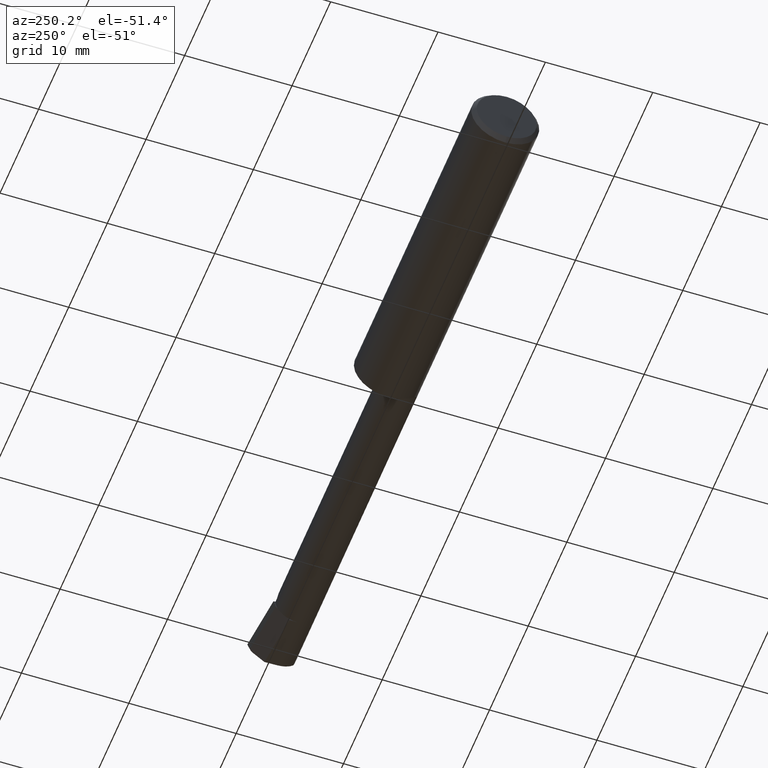
[diagram: clean part render]
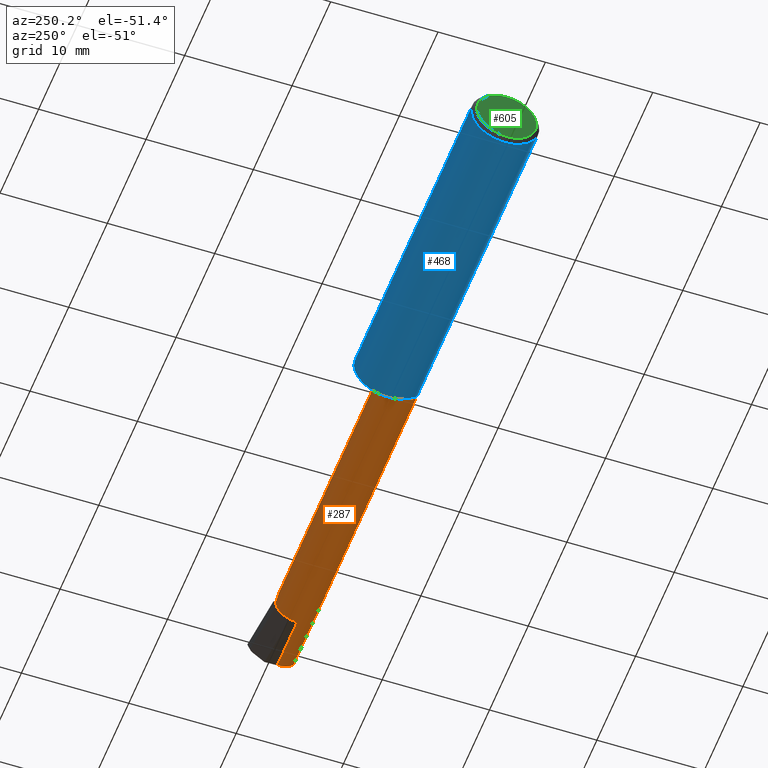
[diagram: same view with three faces highlighted in distinct colors, each labeled with its STEP entity id]
A machine part, auxiliary view with three faces highlighted in distinct colors.
Their STEP definitions:

[orange] entity #287 — the highlighted cylindrical surface (edge-blend (fillet) strip) has radius 2.0104 mm, axis along (-1, 0, -0).
#6 = CARTESIAN_POINT ( 'NONE',  ( 1.760000000000000009, -0.1133222222222223657, -0.05239843939104725512 ) ) ;
#13 = CARTESIAN_POINT ( 'NONE',  ( 2.270000000000000018, 0.02514999999999986691, 2.816687638038912303E-17 ) ) ;
#23 = CARTESIAN_POINT ( 'NONE',  ( 2.152626807264918618, -0.05593098589442790231, 0.1173731927350792209 ) ) ;
#32 = EDGE_CURVE ( 'NONE', #280, #154, #515, .T. ) ;
#34 = ORIENTED_EDGE ( 'NONE', *, *, #200, .T. ) ;
#39 = LINE ( 'NONE', #400, #157 ) ;
#43 = CYLINDRICAL_SURFACE ( 'NONE', #606, 0.07914999999999991487 ) ;
#58 = ORIENTED_EDGE ( 'NONE', *, *, #292, .T. ) ;
#68 = EDGE_CURVE ( 'NONE', #506, #158, #479, .T. ) ;
#70 = LINE ( 'NONE', #6, #493 ) ;
#76 = CARTESIAN_POINT ( 'NONE',  ( 2.486868858499483803, -0.07705019563525719595, -0.07914999999999994262 ) ) ;
#78 = VERTEX_POINT ( 'NONE', #522 ) ;
#88 = LINE ( 'NONE', #501, #197 ) ;
#90 = DIRECTION ( 'NONE',  ( 0.0000000000000000000, -1.000000000000000000, 0.0000000000000000000 ) ) ;
#96 = VERTEX_POINT ( 'NONE', #366 ) ;
#98 = AXIS2_PLACEMENT_3D ( 'NONE', #147, #472, #90 ) ;
#122 = ORIENTED_EDGE ( 'NONE', *, *, #261, .T. ) ;
#147 = CARTESIAN_POINT ( 'NONE',  ( 2.285000000000000142, -0.05399999999999999939, 0.0000000000000000000 ) ) ;
#149 = AXIS2_PLACEMENT_3D ( 'NONE', #574, #208, #525 ) ;
#154 = VERTEX_POINT ( 'NONE', #413 ) ;
#157 = VECTOR ( 'NONE', #454, 39.37007874015748143 ) ;
#158 = VERTEX_POINT ( 'NONE', #415 ) ;
#163 = CARTESIAN_POINT ( 'NONE',  ( 2.285000000000000142, -0.05399999999999999939, 0.0000000000000000000 ) ) ;
#176 = CARTESIAN_POINT ( 'NONE',  ( 2.489204846642126157, -0.1133222222222223657, -0.05239843939104725512 ) ) ;
#181 = DIRECTION ( 'NONE',  ( 0.0000000000000000000, -1.000000000000000000, 0.0000000000000000000 ) ) ;
#183 = DIRECTION ( 'NONE',  ( 1.000000000000000000, -3.414809992080329023E-18, 0.0000000000000000000 ) ) ;
#187 = CARTESIAN_POINT ( 'NONE',  ( 2.487482489302630828, -0.09806266089631200666, -0.06967435635555044304 ) ) ;
#188 = EDGE_CURVE ( 'NONE', #382, #78, #434, .T. ) ;
#197 = VECTOR ( 'NONE', #183, 39.37007874015748143 ) ;
#199 = CIRCLE ( 'NONE', #249, 0.07914999999999995650 ) ;
#200 = EDGE_CURVE ( 'NONE', #280, #96, #88, .T. ) ;
#208 = DIRECTION ( 'NONE',  ( -1.000000000000000000, 3.414809992080329023E-18, -0.0000000000000000000 ) ) ;
#213 = EDGE_CURVE ( 'NONE', #78, #227, #39, .T. ) ;
#217 = ORIENTED_EDGE ( 'NONE', *, *, #213, .F. ) ;
#219 = DIRECTION ( 'NONE',  ( 0.0000000000000000000, -1.000000000000000000, 0.0000000000000000000 ) ) ;
#227 = VERTEX_POINT ( 'NONE', #481 ) ;
#230 = DIRECTION ( 'NONE',  ( -1.000000000000000000, 3.414809992080329023E-18, -0.0000000000000000000 ) ) ;
#236 = EDGE_CURVE ( 'NONE', #336, #270, #438, .T. ) ;
#239 = DIRECTION ( 'NONE',  ( -1.000000000000000000, 3.414809992080329023E-18, -0.0000000000000000000 ) ) ;
#249 = AXIS2_PLACEMENT_3D ( 'NONE', #601, #239, #181 ) ;
#261 = EDGE_CURVE ( 'NONE', #270, #158, #658, .T. ) ;
#270 = VERTEX_POINT ( 'NONE', #533 ) ;
#273 = CARTESIAN_POINT ( 'NONE',  ( 2.702822108735687789E-19, 0.02514999999999990160, 9.802154982235641300E-16 ) ) ;
#280 = VERTEX_POINT ( 'NONE', #624 ) ;
#287 = ADVANCED_FACE ( 'NONE', ( #315 ), #43, .T. ) ;
#292 = EDGE_CURVE ( 'NONE', #506, #227, #199, .T. ) ;
#294 = CARTESIAN_POINT ( 'NONE',  ( 2.183308174668249446, 0.02515000000000005426, 0.08669182533174922545 ) ) ;
#311 = EDGE_LOOP ( 'NONE', ( #437, #403, #591, #34, #524, #596, #122, #375, #58, #217 ) ) ;
#315 = FACE_OUTER_BOUND ( 'NONE', #311, .T. ) ;
#328 = DIRECTION ( 'NONE',  ( -3.414809992080329023E-18, -1.000000000000000000, 0.0000000000000000000 ) ) ;
#335 = EDGE_CURVE ( 'NONE', #96, #336, #581, .T. ) ;
#336 = VERTEX_POINT ( 'NONE', #13 ) ;
#366 = CARTESIAN_POINT ( 'NONE',  ( 2.217601560608951861, -0.1133222222222223519, 0.05239843939104727594 ) ) ;
#375 = ORIENTED_EDGE ( 'NONE', *, *, #68, .F. ) ;
#382 = VERTEX_POINT ( 'NONE', #176 ) ;
#400 = CARTESIAN_POINT ( 'NONE',  ( 2.500000000000000000, -0.05399999999999999939, -0.07914999999999994262 ) ) ;
#403 = ORIENTED_EDGE ( 'NONE', *, *, #423, .T. ) ;
#404 = CARTESIAN_POINT ( 'NONE',  ( 2.487472449114545014, -0.05399999999999999939, -0.07914999999999994262 ) ) ;
#413 = CARTESIAN_POINT ( 'NONE',  ( 1.235000000000000098, -0.1133222222222222825, -0.05239843939104724818 ) ) ;
#415 = CARTESIAN_POINT ( 'NONE',  ( 2.285000000000000142, 0.01818157456899020114, -0.03247372465149776788 ) ) ;
#423 = EDGE_CURVE ( 'NONE', #382, #154, #70, .T. ) ;
#432 = VECTOR ( 'NONE', #436, 39.37007874015748143 ) ;
#434 =( BOUNDED_CURVE ( )  B_SPLINE_CURVE ( 3, ( #505, #187, #76, #404 ),
 .UNSPECIFIED., .F., .T. ) 
 B_SPLINE_CURVE_WITH_KNOTS ( ( 4, 4 ),
 ( 5.645941690095278354, 6.493234751460115639 ),
 .UNSPECIFIED. ) 
 CURVE ( )  GEOMETRIC_REPRESENTATION_ITEM ( )  RATIONAL_B_SPLINE_CURVE ( ( 1.000000000000000000, 0.9410639745696119940, 0.9410639745696119940, 1.000000000000000000 ) ) 
 REPRESENTATION_ITEM ( '' )  );
#436 = DIRECTION ( 'NONE',  ( 1.000000000000000000, -3.414809992080329023E-18, 0.0000000000000000000 ) ) ;
#437 = ORIENTED_EDGE ( 'NONE', *, *, #188, .F. ) ;
#438 = LINE ( 'NONE', #273, #432 ) ;
#451 = DIRECTION ( 'NONE',  ( -1.000000000000000000, 3.414809992080329023E-18, -0.0000000000000000000 ) ) ;
#452 = CARTESIAN_POINT ( 'NONE',  ( 2.217601560608951861, -0.1133222222222223519, 0.05239843939104727594 ) ) ;
#454 = DIRECTION ( 'NONE',  ( -1.000000000000000000, 5.691349986800549142E-18, -0.0000000000000000000 ) ) ;
#472 = DIRECTION ( 'NONE',  ( 1.000000000000000000, -3.414809992080329023E-18, 0.0000000000000000000 ) ) ;
#479 = CIRCLE ( 'NONE', #98, 0.07914999999999992875 ) ;
#481 = CARTESIAN_POINT ( 'NONE',  ( 2.285000000000000142, -0.05399999999999999939, -0.07914999999999994262 ) ) ;
#493 = VECTOR ( 'NONE', #230, 39.37007874015748143 ) ;
#501 = CARTESIAN_POINT ( 'NONE',  ( 1.760000000000000009, -0.1133222222222223657, 0.05239843939104725512 ) ) ;
#505 = CARTESIAN_POINT ( 'NONE',  ( 2.489204846642126157, -0.1133222222222223657, -0.05239843939104725512 ) ) ;
#506 = VERTEX_POINT ( 'NONE', #580 ) ;
#515 = CIRCLE ( 'NONE', #149, 0.07914999999999984548 ) ;
#522 = CARTESIAN_POINT ( 'NONE',  ( 2.487472449114545014, -0.05399999999999999939, -0.07914999999999994262 ) ) ;
#524 = ORIENTED_EDGE ( 'NONE', *, *, #335, .T. ) ;
#525 = DIRECTION ( 'NONE',  ( 0.0000000000000000000, -1.000000000000000000, 0.0000000000000000000 ) ) ;
#531 = DIRECTION ( 'NONE',  ( -1.000000000000000000, 3.414809992080329023E-18, -0.0000000000000000000 ) ) ;
#533 = CARTESIAN_POINT ( 'NONE',  ( 2.285000000000000142, 0.02514999999999996058, 9.802154982235649188E-16 ) ) ;
#574 = CARTESIAN_POINT ( 'NONE',  ( 1.235000000000000098, -0.05399999999999999245, 0.0000000000000000000 ) ) ;
#580 = CARTESIAN_POINT ( 'NONE',  ( 2.285000000000000142, -0.01935479767416492525, -0.07116482597324283454 ) ) ;
#581 =( BOUNDED_CURVE ( )  B_SPLINE_CURVE ( 3, ( #452, #23, #294, #641 ),
 .UNSPECIFIED., .F., .T. ) 
 B_SPLINE_CURVE_WITH_KNOTS ( ( 4, 4 ),
 ( 5.435892245814749835, 7.853981633974484566 ),
 .UNSPECIFIED. ) 
 CURVE ( )  GEOMETRIC_REPRESENTATION_ITEM ( )  RATIONAL_B_SPLINE_CURVE ( ( 1.000000000000000000, 0.5692753596694912765, 0.5692753596694912765, 1.000000000000000000 ) ) 
 REPRESENTATION_ITEM ( '' )  );
#591 = ORIENTED_EDGE ( 'NONE', *, *, #32, .F. ) ;
#596 = ORIENTED_EDGE ( 'NONE', *, *, #236, .T. ) ;
#601 = CARTESIAN_POINT ( 'NONE',  ( 2.285000000000000142, -0.05399999999999999939, 0.0000000000000000000 ) ) ;
#606 = AXIS2_PLACEMENT_3D ( 'NONE', #623, #451, #328 ) ;
#623 = CARTESIAN_POINT ( 'NONE',  ( 0.0000000000000000000, -0.05399999999999999245, 0.0000000000000000000 ) ) ;
#624 = CARTESIAN_POINT ( 'NONE',  ( 1.235000000000000098, -0.1133222222222222547, 0.05239843939104728288 ) ) ;
#641 = CARTESIAN_POINT ( 'NONE',  ( 2.270000000000000018, 0.02514999999999986691, 2.816687638038912303E-17 ) ) ;
#658 = CIRCLE ( 'NONE', #660, 0.07914999999999995650 ) ;
#660 = AXIS2_PLACEMENT_3D ( 'NONE', #163, #531, #219 ) ;

[blue] entity #468 — the highlighted cylindrical surface (edge-blend (fillet) strip) has radius 3.1712 mm, axis along (-1, -0, -0).
#6 = CARTESIAN_POINT ( 'NONE',  ( 1.760000000000000009, -0.1133222222222223657, -0.05239843939104725512 ) ) ;
#11 = VERTEX_POINT ( 'NONE', #477 ) ;
#21 = CARTESIAN_POINT ( 'NONE',  ( 0.01499999999999999424, 0.04895916665957457392, 0.1148500000000000076 ) ) ;
#24 = AXIS2_PLACEMENT_3D ( 'NONE', #625, #223, #585 ) ;
#25 = CARTESIAN_POINT ( 'NONE',  ( 1.233393805215129646, -0.1133222222232597165, 0.05239843938880395929 ) ) ;
#26 = CARTESIAN_POINT ( 'NONE',  ( 1.209999999999997300, -0.07604212793636108692, 0.09921827904968770484 ) ) ;
#33 = CARTESIAN_POINT ( 'NONE',  ( 0.01499999999999999424, 0.0000000000000000000, -0.1248500000000000026 ) ) ;
#45 = ORIENTED_EDGE ( 'NONE', *, *, #200, .F. ) ;
#49 = DIRECTION ( 'NONE',  ( -1.000000000000000000, -0.0000000000000000000, -0.0000000000000000000 ) ) ;
#53 = CARTESIAN_POINT ( 'NONE',  ( 1.218837986083220359, -0.1048226606062679089, -0.06804511026469604873 ) ) ;
#61 = DIRECTION ( 'NONE',  ( -1.000000000000000000, -0.0000000000000000000, -0.0000000000000000000 ) ) ;
#66 = DIRECTION ( 'NONE',  ( -1.000000000000000000, -0.0000000000000000000, -0.0000000000000000000 ) ) ;
#70 = LINE ( 'NONE', #6, #493 ) ;
#77 = EDGE_CURVE ( 'NONE', #613, #538, #461, .T. ) ;
#81 = CARTESIAN_POINT ( 'NONE',  ( 1.231855009147952318, -0.1130869929873387636, 0.05291095013438972677 ) ) ;
#83 = VERTEX_POINT ( 'NONE', #33 ) ;
#86 = AXIS2_PLACEMENT_3D ( 'NONE', #369, #657, #314 ) ;
#88 = LINE ( 'NONE', #501, #197 ) ;
#91 = AXIS2_PLACEMENT_3D ( 'NONE', #390, #49, #439 ) ;
#95 = ORIENTED_EDGE ( 'NONE', *, *, #77, .F. ) ;
#96 = VERTEX_POINT ( 'NONE', #366 ) ;
#102 = ORIENTED_EDGE ( 'NONE', *, *, #423, .F. ) ;
#103 = CARTESIAN_POINT ( 'NONE',  ( 1.210000000000000187, -0.07089166666666693595, -0.1027710761704001136 ) ) ;
#106 = EDGE_CURVE ( 'NONE', #83, #569, #228, .T. ) ;
#109 = CIRCLE ( 'NONE', #91, 0.1248500000000000026 ) ;
#110 = AXIS2_PLACEMENT_3D ( 'NONE', #570, #202, #517 ) ;
#118 = CARTESIAN_POINT ( 'NONE',  ( 2.495338905960690301, -0.1248500000000000582, -6.637417838016179921E-17 ) ) ;
#127 = CARTESIAN_POINT ( 'NONE',  ( 2.217601560608951861, -0.1133222222222223519, 0.05239843939104727594 ) ) ;
#134 = LINE ( 'NONE', #333, #540 ) ;
#135 = CARTESIAN_POINT ( 'NONE',  ( 2.234090882882976192, -0.1209466293052443298, 0.03590911711702311770 ) ) ;
#137 = CARTESIAN_POINT ( 'NONE',  ( 1.228003366130774765, -0.1118869025553488744, 0.05540929543234553167 ) ) ;
#150 = VECTOR ( 'NONE', #66, 39.37007874015748143 ) ;
#153 = CARTESIAN_POINT ( 'NONE',  ( 1.210000000000000187, 0.04895916665957456004, 0.1148500000000000076 ) ) ;
#154 = VERTEX_POINT ( 'NONE', #413 ) ;
#155 = EDGE_CURVE ( 'NONE', #562, #280, #193, .T. ) ;
#172 = CARTESIAN_POINT ( 'NONE',  ( 1.229195140613335457, -0.1123729516825158897, -0.05441079362540557351 ) ) ;
#174 = VERTEX_POINT ( 'NONE', #21 ) ;
#176 = CARTESIAN_POINT ( 'NONE',  ( 2.489204846642126157, -0.1133222222222223657, -0.05239843939104725512 ) ) ;
#183 = DIRECTION ( 'NONE',  ( 1.000000000000000000, -3.414809992080329023E-18, 0.0000000000000000000 ) ) ;
#185 = CARTESIAN_POINT ( 'NONE',  ( 2.270000000000000018, -0.1248500000000000165, 2.816687638038912303E-17 ) ) ;
#193 = B_SPLINE_CURVE_WITH_KNOTS ( 'NONE', 3,
 ( #362, #26, #650, #307, #609, #250, #566, #195, #513, #137, #462, #81, #25, #359 ),
 .UNSPECIFIED., .F., .F.,
 ( 4, 2, 2, 2, 2, 2, 4 ),
 ( 6.218642020841704367E-05, 0.0005341583913332085317, 0.001006130362457999857, 0.001478102333582790966, 0.001714088319145186520, 0.001832081311926387658, 0.001950074304707597470 ),
 .UNSPECIFIED. ) ;
#194 = ORIENTED_EDGE ( 'NONE', *, *, #391, .F. ) ;
#195 = CARTESIAN_POINT ( 'NONE',  ( 1.223217602974939755, -0.1090277136498279537, 0.06089509507572530428 ) ) ;
#197 = VECTOR ( 'NONE', #183, 39.37007874015748143 ) ;
#200 = EDGE_CURVE ( 'NONE', #280, #96, #88, .T. ) ;
#202 = DIRECTION ( 'NONE',  ( -1.000000000000000000, -0.0000000000000000000, -0.0000000000000000000 ) ) ;
#223 = DIRECTION ( 'NONE',  ( 1.000000000000000000, -3.414809992080329023E-18, 0.0000000000000000000 ) ) ;
#224 = CARTESIAN_POINT ( 'NONE',  ( 1.210000000000000187, -0.04895916665957457392, 0.1148500000000000215 ) ) ;
#228 = CIRCLE ( 'NONE', #110, 0.1248500000000000026 ) ;
#229 = CARTESIAN_POINT ( 'NONE',  ( 1.216709462345916481, -0.1014961360546401126, -0.07295290821911692980 ) ) ;
#230 = DIRECTION ( 'NONE',  ( -1.000000000000000000, 3.414809992080329023E-18, -0.0000000000000000000 ) ) ;
#234 = CARTESIAN_POINT ( 'NONE',  ( 0.0000000000000000000, 0.0000000000000000000, 0.0000000000000000000 ) ) ;
#240 = VERTEX_POINT ( 'NONE', #224 ) ;
#244 = EDGE_CURVE ( 'NONE', #240, #562, #545, .T. ) ;
#250 = CARTESIAN_POINT ( 'NONE',  ( 1.216702553529778186, -0.1014824713796366601, 0.07297083456247520361 ) ) ;
#252 = ORIENTED_EDGE ( 'NONE', *, *, #471, .T. ) ;
#254 =( BOUNDED_CURVE ( )  B_SPLINE_CURVE ( 3, ( #185, #329, #135, #127 ),
 .UNSPECIFIED., .F., .T. ) 
 B_SPLINE_CURVE_WITH_KNOTS ( ( 4, 4 ),
 ( 4.712388980384688786, 5.145493999647444028 ),
 .UNSPECIFIED. ) 
 CURVE ( )  GEOMETRIC_REPRESENTATION_ITEM ( )  RATIONAL_B_SPLINE_CURVE ( ( 1.000000000000000000, 0.9844293286710339430, 0.9844293286710339430, 1.000000000000000000 ) ) 
 REPRESENTATION_ITEM ( '' )  );
#278 = CARTESIAN_POINT ( 'NONE',  ( 1.212089430766778220, -0.08992021952243414717, -0.08683155323701792494 ) ) ;
#280 = VERTEX_POINT ( 'NONE', #624 ) ;
#286 = DIRECTION ( 'NONE',  ( 0.0000000000000000000, 0.0000000000000000000, 1.000000000000000000 ) ) ;
#289 = FACE_OUTER_BOUND ( 'NONE', #534, .T. ) ;
#300 = B_SPLINE_CURVE_WITH_KNOTS ( 'NONE', 3,
 ( #494, #395, #539, #172, #341, #337, #631, #53, #229, #536, #278, #429, #433, #103 ),
 .UNSPECIFIED., .F., .F.,
 ( 4, 2, 2, 2, 2, 2, 4 ),
 ( 1.961860195742902937E-07, 0.0001199556417433944404, 0.0002397150974672145746, 0.0004792340089148614023, 0.0009582718318101550578, 0.001437309654705448605, 0.001916347477600742260 ),
 .UNSPECIFIED. ) ;
#306 = ORIENTED_EDGE ( 'NONE', *, *, #495, .T. ) ;
#307 = CARTESIAN_POINT ( 'NONE',  ( 1.212066153268988922, -0.08982957272875712051, 0.08692514756739015691 ) ) ;
#314 = DIRECTION ( 'NONE',  ( 0.0000000000000000000, 1.000000000000000000, 0.0000000000000000000 ) ) ;
#323 = EDGE_CURVE ( 'NONE', #240, #569, #422, .T. ) ;
#329 = CARTESIAN_POINT ( 'NONE',  ( 2.251833290544947630, -0.1248500000000000165, 0.01816670945505155857 ) ) ;
#333 = CARTESIAN_POINT ( 'NONE',  ( 0.0000000000000000000, 0.04895916665957457392, 0.1148500000000000076 ) ) ;
#337 = CARTESIAN_POINT ( 'NONE',  ( 1.224878942730255771, -0.1103076286869489747, -0.05852540734030606956 ) ) ;
#341 = CARTESIAN_POINT ( 'NONE',  ( 1.228018389903473562, -0.1118940578004066627, -0.05539504279880010096 ) ) ;
#345 = CARTESIAN_POINT ( 'NONE',  ( 2.489204846642126157, -0.1133222222222223657, -0.05239843939104725512 ) ) ;
#359 = CARTESIAN_POINT ( 'NONE',  ( 1.235000000000000098, -0.1133222222222222547, 0.05239843939104728288 ) ) ;
#362 = CARTESIAN_POINT ( 'NONE',  ( 1.210000000000000187, -0.07089166666666693595, 0.1027710761704001136 ) ) ;
#366 = CARTESIAN_POINT ( 'NONE',  ( 2.217601560608951861, -0.1133222222222223519, 0.05239843939104727594 ) ) ;
#369 = CARTESIAN_POINT ( 'NONE',  ( 1.210000000000000187, 0.0000000000000000000, 0.0000000000000000000 ) ) ;
#382 = VERTEX_POINT ( 'NONE', #176 ) ;
#383 = EDGE_CURVE ( 'NONE', #154, #613, #300, .T. ) ;
#390 = CARTESIAN_POINT ( 'NONE',  ( 0.01499999999999999424, 0.0000000000000000000, 0.0000000000000000000 ) ) ;
#391 = EDGE_CURVE ( 'NONE', #174, #83, #109, .T. ) ;
#395 = CARTESIAN_POINT ( 'NONE',  ( 1.233397973893801014, -0.1133222222222223241, -0.05239843939104728288 ) ) ;
#401 = EDGE_CURVE ( 'NONE', #174, #538, #134, .T. ) ;
#413 = CARTESIAN_POINT ( 'NONE',  ( 1.235000000000000098, -0.1133222222222222825, -0.05239843939104724818 ) ) ;
#421 = ORIENTED_EDGE ( 'NONE', *, *, #155, .F. ) ;
#422 = LINE ( 'NONE', #645, #150 ) ;
#423 = EDGE_CURVE ( 'NONE', #382, #154, #70, .T. ) ;
#429 = CARTESIAN_POINT ( 'NONE',  ( 1.210429435078794524, -0.08094870196673345508, -0.09525057567498886046 ) ) ;
#430 = ORIENTED_EDGE ( 'NONE', *, *, #383, .F. ) ;
#433 = CARTESIAN_POINT ( 'NONE',  ( 1.209999999999999742, -0.07605073478940860277, -0.09921234202752099440 ) ) ;
#439 = DIRECTION ( 'NONE',  ( 0.0000000000000000000, 0.0000000000000000000, 1.000000000000000000 ) ) ;
#447 = CARTESIAN_POINT ( 'NONE',  ( 2.493107549887203067, -0.1248500000000000026, -0.01816670945505170776 ) ) ;
#457 =( BOUNDED_CURVE ( )  B_SPLINE_CURVE ( 3, ( #345, #635, #447, #118 ),
 .UNSPECIFIED., .F., .F. ) 
 B_SPLINE_CURVE_WITH_KNOTS ( ( 4, 4 ),
 ( 0.9276418632516133522, 1.360746882514366929 ),
 .UNSPECIFIED. ) 
 CURVE ( )  GEOMETRIC_REPRESENTATION_ITEM ( )  RATIONAL_B_SPLINE_CURVE ( ( 1.000000000000000000, 0.9844293286710341651, 0.9844293286710341651, 1.000000000000000000 ) ) 
 REPRESENTATION_ITEM ( '' )  );
#461 = CIRCLE ( 'NONE', #86, 0.1248500000000000026 ) ;
#462 = CARTESIAN_POINT ( 'NONE',  ( 1.229156347344547706, -0.1123603976562050771, 0.05443691454869334367 ) ) ;
#466 = ORIENTED_EDGE ( 'NONE', *, *, #323, .T. ) ;
#467 = CYLINDRICAL_SURFACE ( 'NONE', #485, 0.1248500000000000026 ) ;
#468 = ADVANCED_FACE ( 'NONE', ( #289 ), #467, .T. ) ;
#471 = EDGE_CURVE ( 'NONE', #382, #11, #457, .T. ) ;
#475 = ORIENTED_EDGE ( 'NONE', *, *, #652, .T. ) ;
#477 = CARTESIAN_POINT ( 'NONE',  ( 2.495338905960690301, -0.1248500000000000582, -6.637417838016179921E-17 ) ) ;
#485 = AXIS2_PLACEMENT_3D ( 'NONE', #234, #595, #286 ) ;
#489 = DIRECTION ( 'NONE',  ( 1.000000000000000000, 0.0000000000000000000, 0.0000000000000000000 ) ) ;
#493 = VECTOR ( 'NONE', #230, 39.37007874015748143 ) ;
#494 = CARTESIAN_POINT ( 'NONE',  ( 1.235000000000000098, -0.1133222222222222825, -0.05239843939104724818 ) ) ;
#495 = EDGE_CURVE ( 'NONE', #11, #599, #523, .T. ) ;
#501 = CARTESIAN_POINT ( 'NONE',  ( 1.760000000000000009, -0.1133222222222223657, 0.05239843939104725512 ) ) ;
#513 = CARTESIAN_POINT ( 'NONE',  ( 1.224891482046762015, -0.1103130882036817834, 0.05851436580809116217 ) ) ;
#517 = DIRECTION ( 'NONE',  ( 0.0000000000000000000, 0.0000000000000000000, 1.000000000000000000 ) ) ;
#523 = LINE ( 'NONE', #546, #579 ) ;
#534 = EDGE_LOOP ( 'NONE', ( #102, #252, #306, #475, #45, #421, #600, #466, #582, #194, #655, #95, #430 ) ) ;
#536 = CARTESIAN_POINT ( 'NONE',  ( 1.213310246323733743, -0.09402499227299762619, -0.08235832246780921961 ) ) ;
#538 = VERTEX_POINT ( 'NONE', #153 ) ;
#539 = CARTESIAN_POINT ( 'NONE',  ( 1.231867218484673066, -0.1130881303947560840, -0.05290831216931961289 ) ) ;
#540 = VECTOR ( 'NONE', #489, 39.37007874015748143 ) ;
#545 = CIRCLE ( 'NONE', #24, 0.1248500000000000026 ) ;
#546 = CARTESIAN_POINT ( 'NONE',  ( 4.111069666048746882E-31, -0.1248499999999999888, 9.802154982235641300E-16 ) ) ;
#562 = VERTEX_POINT ( 'NONE', #648 ) ;
#566 = CARTESIAN_POINT ( 'NONE',  ( 1.218812999615359383, -0.1047986892473505849, 0.06808587976958062338 ) ) ;
#569 = VERTEX_POINT ( 'NONE', #634 ) ;
#570 = CARTESIAN_POINT ( 'NONE',  ( 0.01499999999999999424, 0.0000000000000000000, 0.0000000000000000000 ) ) ;
#579 = VECTOR ( 'NONE', #61, 39.37007874015748143 ) ;
#582 = ORIENTED_EDGE ( 'NONE', *, *, #106, .F. ) ;
#585 = DIRECTION ( 'NONE',  ( 0.0000000000000000000, 1.000000000000000000, 0.0000000000000000000 ) ) ;
#595 = DIRECTION ( 'NONE',  ( -1.000000000000000000, -0.0000000000000000000, -0.0000000000000000000 ) ) ;
#599 = VERTEX_POINT ( 'NONE', #642 ) ;
#600 = ORIENTED_EDGE ( 'NONE', *, *, #244, .F. ) ;
#602 = CARTESIAN_POINT ( 'NONE',  ( 1.210000000000000187, -0.07089166666666693595, -0.1027710761704001136 ) ) ;
#609 = CARTESIAN_POINT ( 'NONE',  ( 1.213311842522018846, -0.09402697795089831612, 0.08235509766544014953 ) ) ;
#613 = VERTEX_POINT ( 'NONE', #602 ) ;
#624 = CARTESIAN_POINT ( 'NONE',  ( 1.235000000000000098, -0.1133222222222222547, 0.05239843939104728288 ) ) ;
#625 = CARTESIAN_POINT ( 'NONE',  ( 1.210000000000000187, 0.0000000000000000000, 0.0000000000000000000 ) ) ;
#631 = CARTESIAN_POINT ( 'NONE',  ( 1.223205018706407854, -0.1090156405642971615, -0.06091562844815643502 ) ) ;
#634 = CARTESIAN_POINT ( 'NONE',  ( 0.01499999999999999077, -0.04895916665957456004, 0.1148500000000000215 ) ) ;
#635 = CARTESIAN_POINT ( 'NONE',  ( 2.491030522740641739, -0.1209466293052442604, -0.03590911711702319403 ) ) ;
#642 = CARTESIAN_POINT ( 'NONE',  ( 2.270000000000000018, -0.1248500000000000165, 2.816687638038912303E-17 ) ) ;
#645 = CARTESIAN_POINT ( 'NONE',  ( 0.0000000000000000000, -0.04895916665957456004, 0.1148500000000000076 ) ) ;
#648 = CARTESIAN_POINT ( 'NONE',  ( 1.210000000000000187, -0.07089166666666693595, 0.1027710761704001136 ) ) ;
#650 = CARTESIAN_POINT ( 'NONE',  ( 1.210418395875214159, -0.08085314529530905625, 0.09533153891603382557 ) ) ;
#652 = EDGE_CURVE ( 'NONE', #599, #96, #254, .T. ) ;
#655 = ORIENTED_EDGE ( 'NONE', *, *, #401, .T. ) ;
#657 = DIRECTION ( 'NONE',  ( 1.000000000000000000, -3.414809992080329023E-18, 0.0000000000000000000 ) ) ;

[green] entity #605 — the highlighted planar face has unit normal (1, 0, 0).
#5 = ORIENTED_EDGE ( 'NONE', *, *, #138, .T. ) ;
#37 = EDGE_LOOP ( 'NONE', ( #5, #473 ) ) ;
#119 = PLANE ( 'NONE',  #419 ) ;
#129 = VERTEX_POINT ( 'NONE', #201 ) ;
#138 = EDGE_CURVE ( 'NONE', #258, #129, #216, .T. ) ;
#169 = CIRCLE ( 'NONE', #450, 0.1098499999999996424 ) ;
#201 = CARTESIAN_POINT ( 'NONE',  ( 0.0000000000000000000, 1.437123018799416669E-17, 0.1098499999999996424 ) ) ;
#216 = CIRCLE ( 'NONE', #277, 0.1098499999999996424 ) ;
#253 = DIRECTION ( 'NONE',  ( 0.0000000000000000000, 0.0000000000000000000, 1.000000000000000000 ) ) ;
#258 = VERTEX_POINT ( 'NONE', #483 ) ;
#274 = DIRECTION ( 'NONE',  ( -1.000000000000000000, -0.0000000000000000000, -0.0000000000000000000 ) ) ;
#277 = AXIS2_PLACEMENT_3D ( 'NONE', #309, #610, #253 ) ;
#309 = CARTESIAN_POINT ( 'NONE',  ( 0.0000000000000000000, 0.0000000000000000000, 0.0000000000000000000 ) ) ;
#386 = EDGE_CURVE ( 'NONE', #129, #258, #169, .T. ) ;
#419 = AXIS2_PLACEMENT_3D ( 'NONE', #498, #504, #453 ) ;
#450 = AXIS2_PLACEMENT_3D ( 'NONE', #590, #274, #628 ) ;
#453 = DIRECTION ( 'NONE',  ( 0.0000000000000000000, 0.0000000000000000000, -1.000000000000000000 ) ) ;
#473 = ORIENTED_EDGE ( 'NONE', *, *, #386, .T. ) ;
#483 = CARTESIAN_POINT ( 'NONE',  ( 0.0000000000000000000, 0.0000000000000000000, -0.1098499999999996424 ) ) ;
#498 = CARTESIAN_POINT ( 'NONE',  ( 0.0000000000000000000, 0.0000000000000000000, 0.0000000000000000000 ) ) ;
#504 = DIRECTION ( 'NONE',  ( 1.000000000000000000, 0.0000000000000000000, 0.0000000000000000000 ) ) ;
#590 = CARTESIAN_POINT ( 'NONE',  ( 0.0000000000000000000, 0.0000000000000000000, 0.0000000000000000000 ) ) ;
#605 = ADVANCED_FACE ( 'NONE', ( #617 ), #119, .F. ) ;
#610 = DIRECTION ( 'NONE',  ( -1.000000000000000000, -0.0000000000000000000, -0.0000000000000000000 ) ) ;
#617 = FACE_OUTER_BOUND ( 'NONE', #37, .T. ) ;
#628 = DIRECTION ( 'NONE',  ( 0.0000000000000000000, 0.0000000000000000000, 1.000000000000000000 ) ) ;